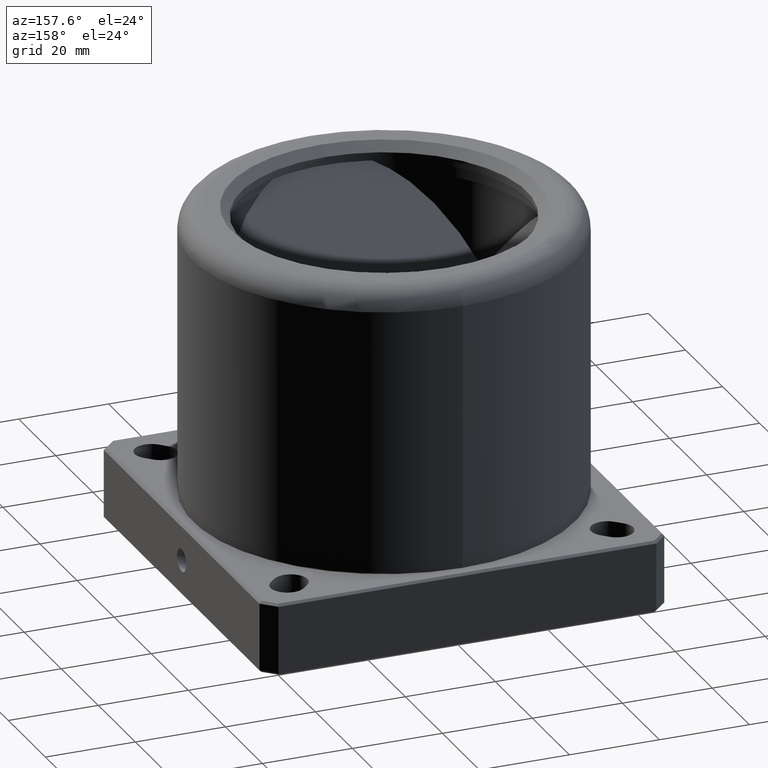
[diagram: clean part render]
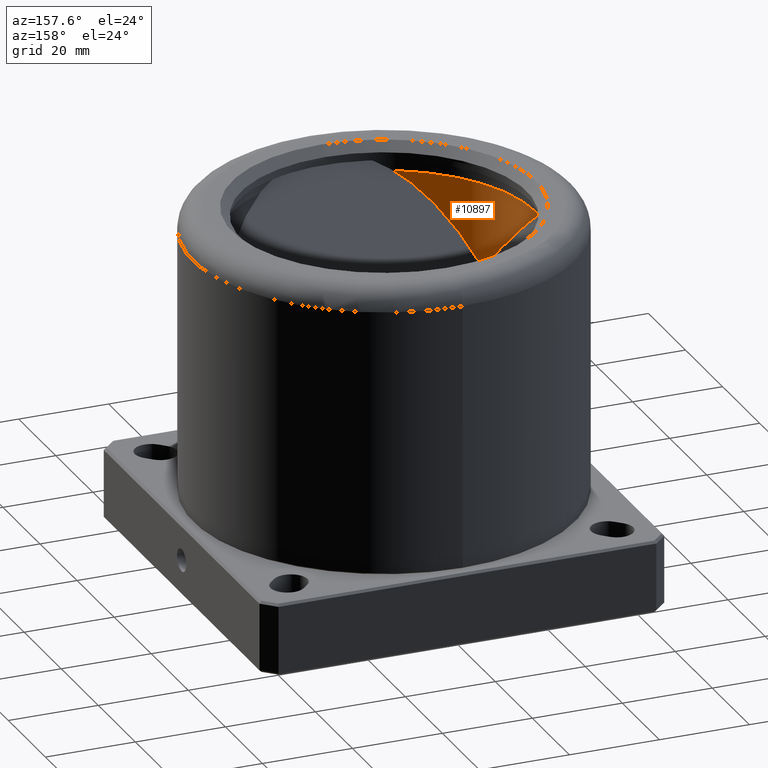
[diagram: same view with one face highlighted and labeled with its STEP entity id]
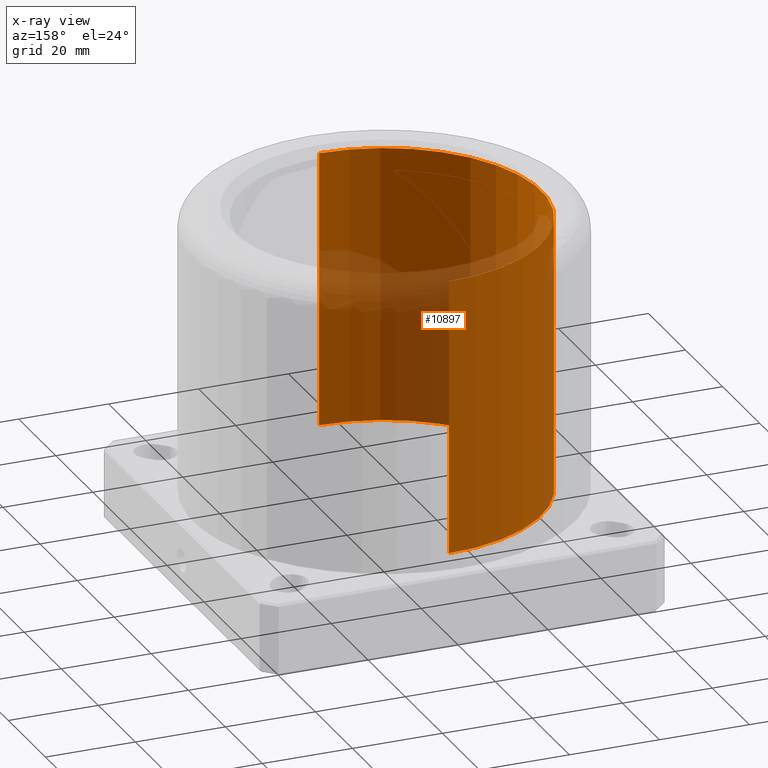
[diagram: x-ray of the same camera — body ghosted, the highlighted face saturated]
A machine part, auxiliary view. The second image highlights one B-rep face of the part: STEP entity #10897.
The next image is the same camera in x-ray: the body ghosted, the highlighted face saturated — about 34% of this face is hidden behind the body in this view.
In plain terms, the highlighted cylindrical surface (partial cylindrical patch) has radius 35 mm, axis along (-0, 0, -1).
Its self-contained STEP definition (entity closure, byte-faithful):
#91 = EDGE_LOOP ( 'NONE', ( #9636, #10202, #5250, #9327 ) ) ;
#195 = VECTOR ( 'NONE', #513, 1000.000000000000000 ) ;
#501 = LINE ( 'NONE', #11395, #195 ) ;
#513 = DIRECTION ( 'NONE',  ( -8.326672684688669100E-017, 0.0000000000000000000, -1.000000000000000000 ) ) ;
#1116 = CARTESIAN_POINT ( 'NONE',  ( -1.638795070508522800E-015, 2.316515400426250000E-015, 16.29999999999999400 ) ) ;
#1157 = CARTESIAN_POINT ( 'NONE',  ( -1.345221918098562200E-013, 35.00000000000000000, 16.29999999999999400 ) ) ;
#1693 = EDGE_CURVE ( 'NONE', #3807, #9923, #2735, .T. ) ;
#2042 = DIRECTION ( 'NONE',  ( 3.747002708109906500E-015, -1.000000000000000000, 0.0000000000000000000 ) ) ;
#2319 = CIRCLE ( 'NONE', #7641, 35.00000000000000000 ) ;
#2735 = CIRCLE ( 'NONE', #6629, 35.00000000000000000 ) ;
#2925 = CARTESIAN_POINT ( 'NONE',  ( -1.345221918098562200E-013, 35.00000000000000000, 77.50000000000000000 ) ) ;
#3517 = VERTEX_POINT ( 'NONE', #1157 ) ;
#3667 = CARTESIAN_POINT ( 'NONE',  ( 1.295062997133381800E-013, -35.00000000000000000, 16.29999999999999400 ) ) ;
#3807 = VERTEX_POINT ( 'NONE', #11527 ) ;
#3972 = AXIS2_PLACEMENT_3D ( 'NONE', #5890, #10432, #9540 ) ;
#4702 = CARTESIAN_POINT ( 'NONE',  ( 1.306109659000411000E-013, -35.00000000000000000, 29.56659793814429800 ) ) ;
#5095 = EDGE_CURVE ( 'NONE', #9923, #3517, #501, .T. ) ;
#5250 = ORIENTED_EDGE ( 'NONE', *, *, #7133, .T. ) ;
#5890 = CARTESIAN_POINT ( 'NONE',  ( -5.341288838055910000E-016, 2.316515400426250000E-015, 29.56659793814429800 ) ) ;
#6185 = DIRECTION ( 'NONE',  ( 3.747002708109906500E-015, -1.000000000000000000, 0.0000000000000000000 ) ) ;
#6287 = DIRECTION ( 'NONE',  ( -8.326672684688669100E-017, 0.0000000000000000000, -1.000000000000000000 ) ) ;
#6629 = AXIS2_PLACEMENT_3D ( 'NONE', #7187, #6287, #6185 ) ;
#7133 = EDGE_CURVE ( 'NONE', #3807, #10267, #10719, .T. ) ;
#7187 = CARTESIAN_POINT ( 'NONE',  ( 3.457128612520943600E-015, 2.316515400426250000E-015, 77.50000000000000000 ) ) ;
#7452 = DIRECTION ( 'NONE',  ( -8.326672684688669100E-017, 0.0000000000000000000, -1.000000000000000000 ) ) ;
#7641 = AXIS2_PLACEMENT_3D ( 'NONE', #1116, #7452, #2042 ) ;
#8115 = EDGE_CURVE ( 'NONE', #10267, #3517, #2319, .T. ) ;
#8577 = VECTOR ( 'NONE', #11015, 1000.000000000000000 ) ;
#9327 = ORIENTED_EDGE ( 'NONE', *, *, #8115, .T. ) ;
#9540 = DIRECTION ( 'NONE',  ( 3.747002708109906500E-015, -1.000000000000000000, 0.0000000000000000000 ) ) ;
#9636 = ORIENTED_EDGE ( 'NONE', *, *, #5095, .F. ) ;
#9815 = FACE_OUTER_BOUND ( 'NONE', #91, .T. ) ;
#9923 = VERTEX_POINT ( 'NONE', #2925 ) ;
#10202 = ORIENTED_EDGE ( 'NONE', *, *, #1693, .F. ) ;
#10267 = VERTEX_POINT ( 'NONE', #3667 ) ;
#10432 = DIRECTION ( 'NONE',  ( -8.326672684688669100E-017, 0.0000000000000000000, -1.000000000000000000 ) ) ;
#10719 = LINE ( 'NONE', #4702, #8577 ) ;
#10897 = ADVANCED_FACE ( 'NONE', ( #9815 ), #11073, .F. ) ;
#11015 = DIRECTION ( 'NONE',  ( -8.326672684688669100E-017, 0.0000000000000000000, -1.000000000000000000 ) ) ;
#11073 = CYLINDRICAL_SURFACE ( 'NONE', #3972, 35.00000000000000000 ) ;
#11395 = CARTESIAN_POINT ( 'NONE',  ( -1.359654874646680400E-013, 35.00000000000000000, 29.56659793814429800 ) ) ;
#11527 = CARTESIAN_POINT ( 'NONE',  ( 1.346022233963676500E-013, -35.00000000000000000, 77.50000000000000000 ) ) ;